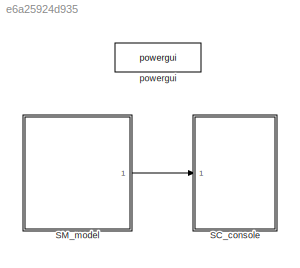
MODEL slx_e6a25924d935
KIND model
CONFIG AbsTol = auto
CONFIG EnableMultiTasking = on
CONFIG FixedStep = 5e-5
CONFIG MaxStep = auto
CONFIG MinStep = auto
CONFIG RelTol = 1e-3
CONFIG SampleTimeConstraint = Unconstrained
CONFIG Solver = ode4
CONFIG SolverName = ode4
CONFIG StartTime = 0.0
CONFIG StopTime = 2
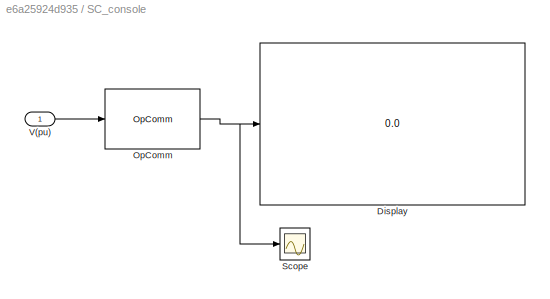
BLOCK [SubSystem] SC_console
  Ports = [1]
  RequestExecContextInheritance = off
BLOCK [Display] SC_console/Display
  Decimation = 1
  Ports = [1]
BLOCK [Reference] SC_console/OpComm  REF=rtlab/OpComm
  Ports = [1, 1]
  SourceBlock = rtlab/OpComm
  SourceType = RT-LAB OpComm
BLOCK [Scope] SC_console/Scope
  Floating = off
  NumInputPorts = 1
  Ports = [1]
  ScopeSpecificationString = Simulink.scopes.TimeScopeBlockCfg('CurrentConfiguration', extmgr.ConfigurationSet(extmgr.Configuration('Core','General UI',true,'FigureColor',[1 1 1]),extmgr.Configuration('Core','Source UI',true),extmgr.Configuration('Sources','WiredSimulink',true),extmgr.Configuration('Visuals','Time Domain',true,'SerializedDisplays',{struct('MinYLimReal','0.9','MaxYLimReal','1.1','YLabelReal','','MinYLimMag','0...<+1648ch>
BLOCK [Inport] SC_console/V(pu) 
  IconDisplay = Port number
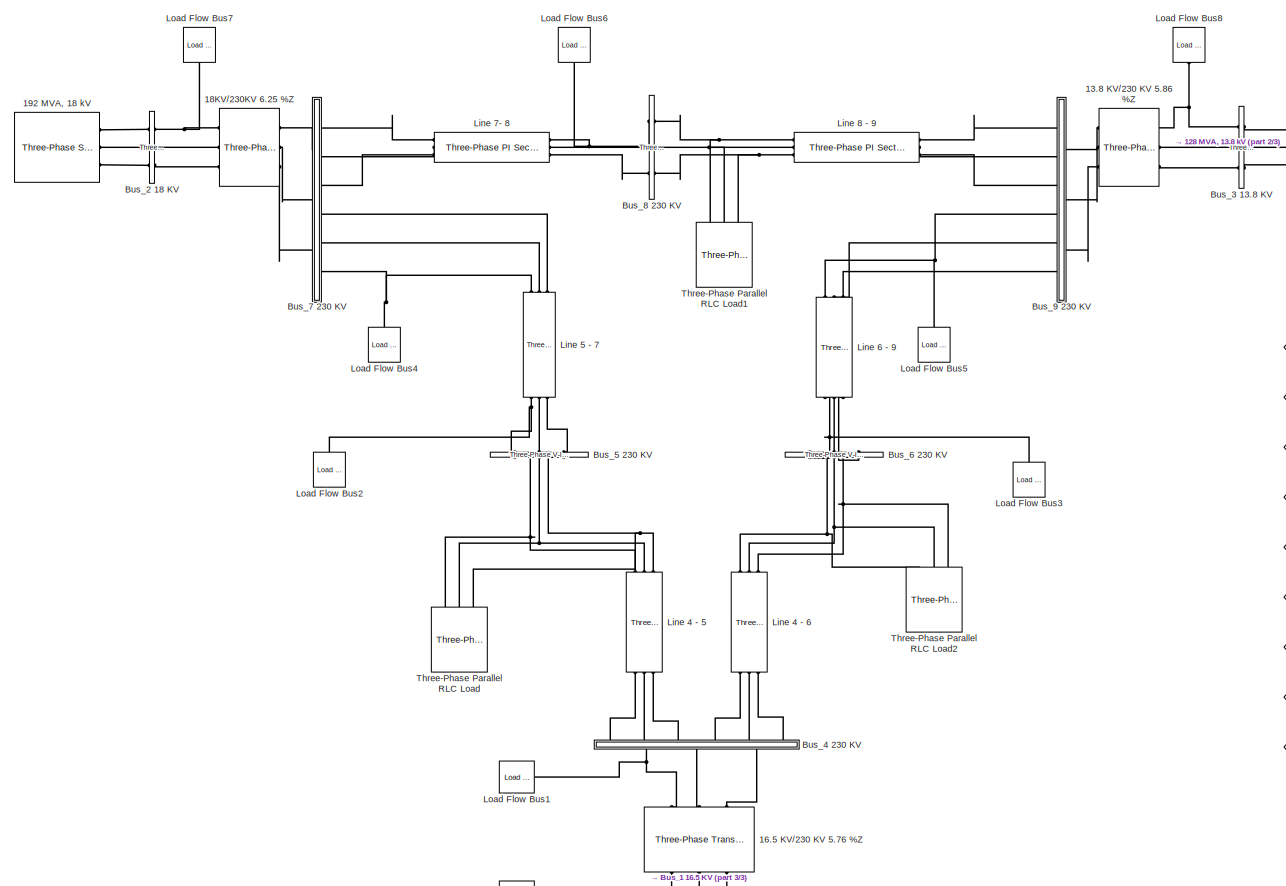
[diagram: SM_model - part 1/3, center side, full height]
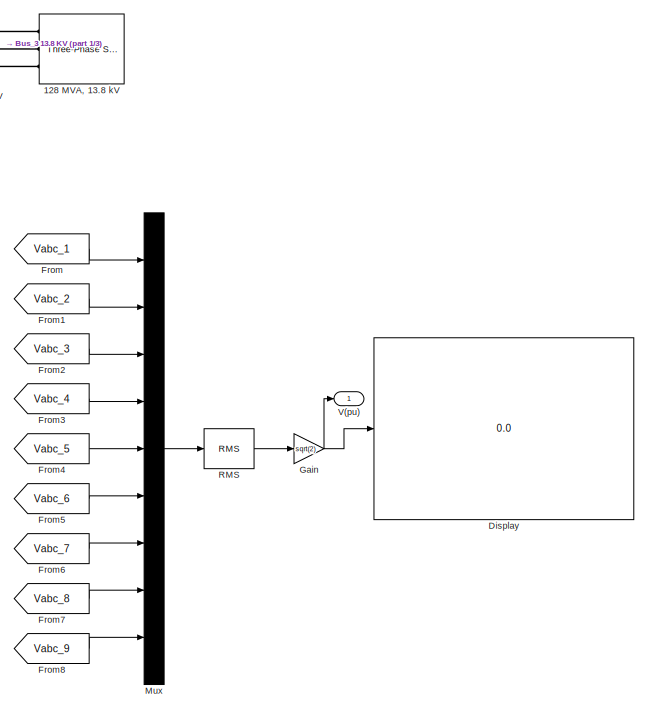
[diagram: SM_model - part 2/3, middle right region]
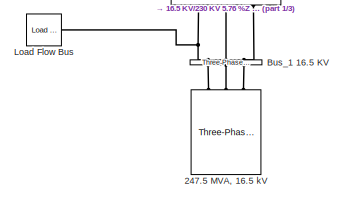
[diagram: SM_model - part 3/3, bottom center region]
BLOCK [SubSystem] SM_model
  Ports = [0, 1]
  RequestExecContextInheritance = off
BLOCK [Reference] SM_model/ Line 4 - 6  REF=powerlib/Elements/Three-Phase
PI Section Line
  AttributesFormatString = \n
  Ports = [0, 0, 0, 0, 0, 3, 3]
  SourceBlock = powerlib/Elements/Three-Phase\nPI Section Line
  SourceProductBaseCode = PS
  SourceProductName = Simscape Electrical
  SourceType = Three-Phase PI Section Line
BLOCK [Reference] SM_model/ Line 6 - 9  REF=powerlib/Elements/Three-Phase
PI Section Line
  AttributesFormatString = \n
  Ports = [0, 0, 0, 0, 0, 3, 3]
  SourceBlock = powerlib/Elements/Three-Phase\nPI Section Line
  SourceProductBaseCode = PS
  SourceProductName = Simscape Electrical
  SourceType = Three-Phase PI Section Line
BLOCK [Reference] SM_model/128 MVA, 13.8 kV  REF=powerlib/Electrical
Sources/Three-Phase Source
  Ports = [0, 0, 0, 0, 0, 0, 3]
  SourceBlock = powerlib/Electrical\nSources/Three-Phase Source
  SourceProductBaseCode = PS
  SourceProductName = Simscape Electrical
  SourceType = Three-Phase Source
BLOCK [Reference] SM_model/13.8 KV//230 KV 5.86 %Z  REF=powerlib/Elements/Three-Phase
Transformer
(Two Windings)
  Ports = [0, 0, 0, 0, 0, 3, 3]
  SourceBlock = powerlib/Elements/Three-Phase\nTransformer\n(Two Windings)
  SourceProductBaseCode = PS
  SourceProductName = Simscape Electrical
  SourceType = Three-Phase Transformer (Two Windings)
BLOCK [Reference] SM_model/16.5 KV//230 KV 5.76 %Z       REF=powerlib/Elements/Three-Phase
Transformer
(Two Windings)
  Ports = [0, 0, 0, 0, 0, 3, 3]
  SourceBlock = powerlib/Elements/Three-Phase\nTransformer\n(Two Windings)
  SourceProductBaseCode = PS
  SourceProductName = Simscape Electrical
  SourceType = Three-Phase Transformer (Two Windings)
BLOCK [Reference] SM_model/18KV//230KV 6.25 %Z  REF=powerlib/Elements/Three-Phase
Transformer
(Two Windings)
  Ports = [0, 0, 0, 0, 0, 3, 3]
  SourceBlock = powerlib/Elements/Three-Phase\nTransformer\n(Two Windings)
  SourceProductBaseCode = PS
  SourceProductName = Simscape Electrical
  SourceType = Three-Phase Transformer (Two Windings)
BLOCK [Reference] SM_model/192 MVA, 18 kV  REF=powerlib/Electrical
Sources/Three-Phase Source
  Ports = [0, 0, 0, 0, 0, 0, 3]
  SourceBlock = powerlib/Electrical\nSources/Three-Phase Source
  SourceProductBaseCode = PS
  SourceProductName = Simscape Electrical
  SourceType = Three-Phase Source
BLOCK [Reference] SM_model/247.5 MVA, 16.5 kV  REF=powerlib/Electrical
Sources/Three-Phase Source
  Ports = [0, 0, 0, 0, 0, 0, 3]
  SourceBlock = powerlib/Electrical\nSources/Three-Phase Source
  SourceProductBaseCode = PS
  SourceProductName = Simscape Electrical
  SourceType = Three-Phase Source
BLOCK [Reference] SM_model/Bus_1 16.5 KV  REF=powerlib/Measurements/Three-Phase
V-I Measurement
  Ports = [0, 0, 0, 0, 0, 3, 3]
  SourceBlock = powerlib/Measurements/Three-Phase\nV-I Measurement
  SourceProductBaseCode = PS
  SourceProductName = Simscape Electrical
  SourceType = Three-Phase VI Measurement
BLOCK [Reference] SM_model/Bus_2 18 KV  REF=powerlib/Measurements/Three-Phase
V-I Measurement
  Ports = [0, 0, 0, 0, 0, 3, 3]
  SourceBlock = powerlib/Measurements/Three-Phase\nV-I Measurement
  SourceProductBaseCode = PS
  SourceProductName = Simscape Electrical
  SourceType = Three-Phase VI Measurement
BLOCK [Reference] SM_model/Bus_3 13.8 KV  REF=powerlib/Measurements/Three-Phase
V-I Measurement
  Ports = [0, 0, 0, 0, 0, 3, 3]
  SourceBlock = powerlib/Measurements/Three-Phase\nV-I Measurement
  SourceProductBaseCode = PS
  SourceProductName = Simscape Electrical
  SourceType = Three-Phase VI Measurement
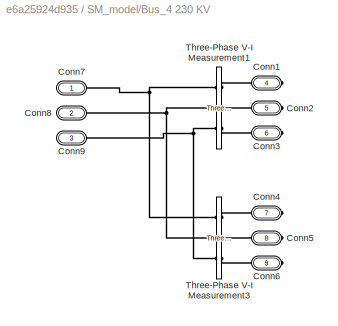
BLOCK [SubSystem] SM_model/Bus_4 230 KV
  Ports = [0, 0, 0, 0, 0, 3, 6]
  RequestExecContextInheritance = off
BLOCK [PMIOPort] SM_model/Bus_4 230 KV/Conn1
  Port = 4
  Side = Right
BLOCK [PMIOPort] SM_model/Bus_4 230 KV/Conn2
  Port = 5
  Side = Right
BLOCK [PMIOPort] SM_model/Bus_4 230 KV/Conn3
  Port = 6
  Side = Right
BLOCK [PMIOPort] SM_model/Bus_4 230 KV/Conn4
  Port = 7
  Side = Right
BLOCK [PMIOPort] SM_model/Bus_4 230 KV/Conn5
  Port = 8
  Side = Right
BLOCK [PMIOPort] SM_model/Bus_4 230 KV/Conn6
  Port = 9
  Side = Right
BLOCK [PMIOPort] SM_model/Bus_4 230 KV/Conn7
  Side = Left
BLOCK [PMIOPort] SM_model/Bus_4 230 KV/Conn8
  Port = 2
  Side = Left
BLOCK [PMIOPort] SM_model/Bus_4 230 KV/Conn9
  Port = 3
  Side = Left
BLOCK [Reference] SM_model/Bus_4 230 KV/Three-Phase V-I Measurement1  REF=powerlib/Measurements/Three-Phase
V-I Measurement
  Ports = [0, 0, 0, 0, 0, 3, 3]
  SourceBlock = powerlib/Measurements/Three-Phase\nV-I Measurement
  SourceProductBaseCode = PS
  SourceProductName = Simscape Electrical
  SourceType = Three-Phase VI Measurement
BLOCK [Reference] SM_model/Bus_4 230 KV/Three-Phase V-I Measurement3  REF=powerlib/Measurements/Three-Phase
V-I Measurement
  Ports = [0, 0, 0, 0, 0, 3, 3]
  SourceBlock = powerlib/Measurements/Three-Phase\nV-I Measurement
  SourceProductBaseCode = PS
  SourceProductName = Simscape Electrical
  SourceType = Three-Phase VI Measurement
BLOCK [Reference] SM_model/Bus_5 230 KV  REF=powerlib/Measurements/Three-Phase
V-I Measurement
  Ports = [0, 0, 0, 0, 0, 3, 3]
  SourceBlock = powerlib/Measurements/Three-Phase\nV-I Measurement
  SourceProductBaseCode = PS
  SourceProductName = Simscape Electrical
  SourceType = Three-Phase VI Measurement
BLOCK [Reference] SM_model/Bus_6 230 KV  REF=powerlib/Measurements/Three-Phase
V-I Measurement
  Ports = [0, 0, 0, 0, 0, 3, 3]
  SourceBlock = powerlib/Measurements/Three-Phase\nV-I Measurement
  SourceProductBaseCode = PS
  SourceProductName = Simscape Electrical
  SourceType = Three-Phase VI Measurement
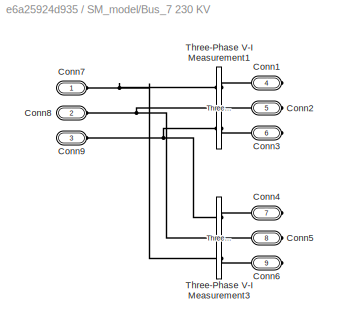
BLOCK [SubSystem] SM_model/Bus_7 230 KV
  Ports = [0, 0, 0, 0, 0, 3, 6]
  RequestExecContextInheritance = off
BLOCK [PMIOPort] SM_model/Bus_7 230 KV/Conn1
  Port = 4
  Side = Right
BLOCK [PMIOPort] SM_model/Bus_7 230 KV/Conn2
  Port = 5
  Side = Right
BLOCK [PMIOPort] SM_model/Bus_7 230 KV/Conn3
  Port = 6
  Side = Right
BLOCK [PMIOPort] SM_model/Bus_7 230 KV/Conn4
  Port = 7
  Side = Right
BLOCK [PMIOPort] SM_model/Bus_7 230 KV/Conn5
  Port = 8
  Side = Right
BLOCK [PMIOPort] SM_model/Bus_7 230 KV/Conn6
  Port = 9
  Side = Right
BLOCK [PMIOPort] SM_model/Bus_7 230 KV/Conn7
  Side = Left
BLOCK [PMIOPort] SM_model/Bus_7 230 KV/Conn8
  Port = 2
  Side = Left
BLOCK [PMIOPort] SM_model/Bus_7 230 KV/Conn9
  Port = 3
  Side = Left
BLOCK [Reference] SM_model/Bus_7 230 KV/Three-Phase V-I Measurement1  REF=powerlib/Measurements/Three-Phase
V-I Measurement
  Ports = [0, 0, 0, 0, 0, 3, 3]
  SourceBlock = powerlib/Measurements/Three-Phase\nV-I Measurement
  SourceProductBaseCode = PS
  SourceProductName = Simscape Electrical
  SourceType = Three-Phase VI Measurement
BLOCK [Reference] SM_model/Bus_7 230 KV/Three-Phase V-I Measurement3  REF=powerlib/Measurements/Three-Phase
V-I Measurement
  Ports = [0, 0, 0, 0, 0, 3, 3]
  SourceBlock = powerlib/Measurements/Three-Phase\nV-I Measurement
  SourceProductBaseCode = PS
  SourceProductName = Simscape Electrical
  SourceType = Three-Phase VI Measurement
BLOCK [Reference] SM_model/Bus_8 230 KV  REF=powerlib/Measurements/Three-Phase
V-I Measurement
  Ports = [0, 0, 0, 0, 0, 3, 3]
  SourceBlock = powerlib/Measurements/Three-Phase\nV-I Measurement
  SourceProductBaseCode = PS
  SourceProductName = Simscape Electrical
  SourceType = Three-Phase VI Measurement
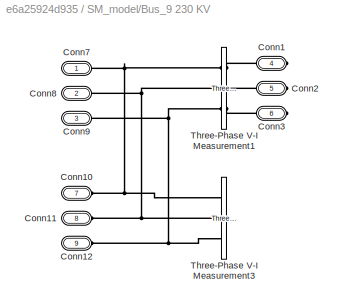
BLOCK [SubSystem] SM_model/Bus_9 230 KV
  Ports = [0, 0, 0, 0, 0, 6, 3]
  RequestExecContextInheritance = off
BLOCK [PMIOPort] SM_model/Bus_9 230 KV/Conn1
  Port = 4
  Side = Right
BLOCK [PMIOPort] SM_model/Bus_9 230 KV/Conn10
  Port = 7
  Side = Left
BLOCK [PMIOPort] SM_model/Bus_9 230 KV/Conn11
  Port = 8
  Side = Left
BLOCK [PMIOPort] SM_model/Bus_9 230 KV/Conn12
  Port = 9
  Side = Left
BLOCK [PMIOPort] SM_model/Bus_9 230 KV/Conn2
  Port = 5
  Side = Right
BLOCK [PMIOPort] SM_model/Bus_9 230 KV/Conn3
  Port = 6
  Side = Right
BLOCK [PMIOPort] SM_model/Bus_9 230 KV/Conn7
  Side = Left
BLOCK [PMIOPort] SM_model/Bus_9 230 KV/Conn8
  Port = 2
  Side = Left
BLOCK [PMIOPort] SM_model/Bus_9 230 KV/Conn9
  Port = 3
  Side = Left
BLOCK [Reference] SM_model/Bus_9 230 KV/Three-Phase V-I Measurement1  REF=powerlib/Measurements/Three-Phase
V-I Measurement
  Ports = [0, 0, 0, 0, 0, 3, 3]
  SourceBlock = powerlib/Measurements/Three-Phase\nV-I Measurement
  SourceProductBaseCode = PS
  SourceProductName = Simscape Electrical
  SourceType = Three-Phase VI Measurement
BLOCK [Reference] SM_model/Bus_9 230 KV/Three-Phase V-I Measurement3  REF=powerlib/Measurements/Three-Phase
V-I Measurement
  Ports = [0, 0, 0, 0, 0, 3, 3]
  SourceBlock = powerlib/Measurements/Three-Phase\nV-I Measurement
  SourceProductBaseCode = PS
  SourceProductName = Simscape Electrical
  SourceType = Three-Phase VI Measurement
BLOCK [Display] SM_model/Display
  Decimation = 1
  Ports = [1]
BLOCK [From] SM_model/From
  GotoTag = Vabc_1
  TagVisibility = global
BLOCK [From] SM_model/From1
  GotoTag = Vabc_2
  TagVisibility = global
BLOCK [From] SM_model/From2
  GotoTag = Vabc_3
  TagVisibility = global
BLOCK [From] SM_model/From3
  GotoTag = Vabc_4
  TagVisibility = global
BLOCK [From] SM_model/From4
  GotoTag = Vabc_5
  TagVisibility = global
BLOCK [From] SM_model/From5
  GotoTag = Vabc_6
  TagVisibility = global
BLOCK [From] SM_model/From6
  GotoTag = Vabc_7
  TagVisibility = global
BLOCK [From] SM_model/From7
  GotoTag = Vabc_8
  TagVisibility = global
BLOCK [From] SM_model/From8
  GotoTag = Vabc_9
  TagVisibility = global
BLOCK [Gain] SM_model/Gain
  Gain = sqrt(2)
  OutDataTypeStr = Inherit: Inherit via internal rule
  ParamDataTypeStr = Inherit: Inherit via internal rule
  SaturateOnIntegerOverflow = off
BLOCK [Reference] SM_model/Line 4 - 5   REF=powerlib/Elements/Three-Phase
PI Section Line
  AttributesFormatString = \n
  Ports = [0, 0, 0, 0, 0, 3, 3]
  SourceBlock = powerlib/Elements/Three-Phase\nPI Section Line
  SourceProductBaseCode = PS
  SourceProductName = Simscape Electrical
  SourceType = Three-Phase PI Section Line
BLOCK [Reference] SM_model/Line 5 - 7   REF=powerlib/Elements/Three-Phase
PI Section Line
  AttributesFormatString = \n
  Ports = [0, 0, 0, 0, 0, 3, 3]
  SourceBlock = powerlib/Elements/Three-Phase\nPI Section Line
  SourceProductBaseCode = PS
  SourceProductName = Simscape Electrical
  SourceType = Three-Phase PI Section Line
BLOCK [Reference] SM_model/Line 7- 8  REF=powerlib/Elements/Three-Phase
PI Section Line
  AttributesFormatString = \n
  Ports = [0, 0, 0, 0, 0, 3, 3]
  SourceBlock = powerlib/Elements/Three-Phase\nPI Section Line
  SourceProductBaseCode = PS
  SourceProductName = Simscape Electrical
  SourceType = Three-Phase PI Section Line
BLOCK [Reference] SM_model/Line 8 - 9  REF=powerlib/Elements/Three-Phase
PI Section Line
  AttributesFormatString = \n
  Ports = [0, 0, 0, 0, 0, 3, 3]
  SourceBlock = powerlib/Elements/Three-Phase\nPI Section Line
  SourceProductBaseCode = PS
  SourceProductName = Simscape Electrical
  SourceType = Three-Phase PI Section Line
BLOCK [Reference] SM_model/Load Flow Bus  REF=powerlib/Measurements/Load Flow Bus
  AttributesFormatString = %<ID>\n%<Vbase>V\n%<VLF>pu\n%<angleLF>deg.
  Ports = [0, 0, 0, 0, 0, 1]
  SourceBlock = powerlib/Measurements/Load Flow Bus
  SourceProductBaseCode = PS
  SourceProductName = Simscape Electrical
  SourceType = Load Flow Bus
BLOCK [Reference] SM_model/Load Flow Bus1  REF=powerlib/Measurements/Load Flow Bus
  AttributesFormatString = %<ID>\n%<Vbase>V\n%<VLF>pu\n%<angleLF>deg.
  Ports = [0, 0, 0, 0, 0, 1]
  SourceBlock = powerlib/Measurements/Load Flow Bus
  SourceProductBaseCode = PS
  SourceProductName = Simscape Electrical
  SourceType = Load Flow Bus
BLOCK [Reference] SM_model/Load Flow Bus2  REF=powerlib/Measurements/Load Flow Bus
  AttributesFormatString = %<ID>\n%<Vbase>V\n%<VLF>pu\n%<angleLF>deg.
  Ports = [0, 0, 0, 0, 0, 1]
  SourceBlock = powerlib/Measurements/Load Flow Bus
  SourceProductBaseCode = PS
  SourceProductName = Simscape Electrical
  SourceType = Load Flow Bus
BLOCK [Reference] SM_model/Load Flow Bus3  REF=powerlib/Measurements/Load Flow Bus
  AttributesFormatString = %<ID>\n%<Vbase>V\n%<VLF>pu\n%<angleLF>deg.
  Ports = [0, 0, 0, 0, 0, 1]
  SourceBlock = powerlib/Measurements/Load Flow Bus
  SourceProductBaseCode = PS
  SourceProductName = Simscape Electrical
  SourceType = Load Flow Bus
BLOCK [Reference] SM_model/Load Flow Bus4  REF=powerlib/Measurements/Load Flow Bus
  AttributesFormatString = %<ID>\n%<Vbase>V\n%<VLF>pu\n%<angleLF>deg.
  Ports = [0, 0, 0, 0, 0, 1]
  SourceBlock = powerlib/Measurements/Load Flow Bus
  SourceProductBaseCode = PS
  SourceProductName = Simscape Electrical
  SourceType = Load Flow Bus
BLOCK [Reference] SM_model/Load Flow Bus5  REF=powerlib/Measurements/Load Flow Bus
  AttributesFormatString = %<ID>\n%<Vbase>V\n%<VLF>pu\n%<angleLF>deg.
  Ports = [0, 0, 0, 0, 0, 1]
  SourceBlock = powerlib/Measurements/Load Flow Bus
  SourceProductBaseCode = PS
  SourceProductName = Simscape Electrical
  SourceType = Load Flow Bus
BLOCK [Reference] SM_model/Load Flow Bus6  REF=powerlib/Measurements/Load Flow Bus
  AttributesFormatString = %<ID>\n%<Vbase>V\n%<VLF>pu\n%<angleLF>deg.
  Ports = [0, 0, 0, 0, 0, 1]
  SourceBlock = powerlib/Measurements/Load Flow Bus
  SourceProductBaseCode = PS
  SourceProductName = Simscape Electrical
  SourceType = Load Flow Bus
BLOCK [Reference] SM_model/Load Flow Bus7  REF=powerlib/Measurements/Load Flow Bus
  AttributesFormatString = %<ID>\n%<Vbase>V\n%<VLF>pu\n%<angleLF>deg.
  Ports = [0, 0, 0, 0, 0, 1]
  SourceBlock = powerlib/Measurements/Load Flow Bus
  SourceProductBaseCode = PS
  SourceProductName = Simscape Electrical
  SourceType = Load Flow Bus
BLOCK [Reference] SM_model/Load Flow Bus8  REF=powerlib/Measurements/Load Flow Bus
  AttributesFormatString = %<ID>\n%<Vbase>V\n%<VLF>pu\n%<angleLF>deg.
  Ports = [0, 0, 0, 0, 0, 1]
  SourceBlock = powerlib/Measurements/Load Flow Bus
  SourceProductBaseCode = PS
  SourceProductName = Simscape Electrical
  SourceType = Load Flow Bus
BLOCK [Mux] SM_model/Mux
  DisplayOption = bar
  Inputs = 9
  Ports = [9, 1]
BLOCK [Reference] SM_model/RMS  REF=powerlib_meascontrol/Measurements/RMS
  Ports = [1, 1]
  SourceBlock = powerlib_meascontrol/Measurements/RMS
  SourceProductBaseCode = PS
  SourceProductName = Simscape Electrical
  SourceType = RMS
BLOCK [Reference] SM_model/Three-Phase Parallel RLC Load  REF=powerlib/Elements/Three-Phase
Parallel RLC Load
  AttributesFormatString = \n
  Ports = [0, 0, 0, 0, 0, 3]
  SourceBlock = powerlib/Elements/Three-Phase\nParallel RLC Load
  SourceProductBaseCode = PS
  SourceProductName = Simscape Electrical
  SourceType = Three-Phase Parallel RLC Load
BLOCK [Reference] SM_model/Three-Phase Parallel RLC Load1  REF=powerlib/Elements/Three-Phase
Parallel RLC Load
  AttributesFormatString = \n
  Ports = [0, 0, 0, 0, 0, 3]
  SourceBlock = powerlib/Elements/Three-Phase\nParallel RLC Load
  SourceProductBaseCode = PS
  SourceProductName = Simscape Electrical
  SourceType = Three-Phase Parallel RLC Load
BLOCK [Reference] SM_model/Three-Phase Parallel RLC Load2  REF=powerlib/Elements/Three-Phase
Parallel RLC Load
  AttributesFormatString = \n
  Ports = [0, 0, 0, 0, 0, 3]
  SourceBlock = powerlib/Elements/Three-Phase\nParallel RLC Load
  SourceProductBaseCode = PS
  SourceProductName = Simscape Electrical
  SourceType = Three-Phase Parallel RLC Load
BLOCK [Outport] SM_model/V(pu)
  IconDisplay = Port number
BLOCK [Reference] powergui  REF=powerlib/powergui
  Ports = []
  Priority = 1
  SourceBlock = powerlib/powergui
  SourceProductBaseCode = PS
  SourceProductName = Simscape Electrical
  SourceType = PSB option menu block
NET SC_console/OpComm:1 -> SC_console/Display:1, SC_console/Scope:1
LINE SC_console/V(pu) :1 -> SC_console/OpComm:1
LINE SM_model/From1:1 -> SM_model/Mux:2
LINE SM_model/From2:1 -> SM_model/Mux:3
LINE SM_model/From3:1 -> SM_model/Mux:4
LINE SM_model/From4:1 -> SM_model/Mux:5
LINE SM_model/From5:1 -> SM_model/Mux:6
LINE SM_model/From6:1 -> SM_model/Mux:7
LINE SM_model/From7:1 -> SM_model/Mux:8
LINE SM_model/From8:1 -> SM_model/Mux:9
LINE SM_model/From:1 -> SM_model/Mux:1
NET SM_model/Gain:1 -> SM_model/Display:1, SM_model/V(pu):1
LINE SM_model/Mux:1 -> SM_model/RMS:1
LINE SM_model/RMS:1 -> SM_model/Gain:1
LINE SM_model:1 -> SC_console:1
PNET net1: SM_model/ Line 4 - 6:LConn1 -- SM_model/Bus_6 230 KV:RConn1 -- SM_model/Three-Phase Parallel RLC Load2:LConn1
PNET net2: SM_model/ Line 4 - 6:LConn2 -- SM_model/Bus_6 230 KV:RConn2 -- SM_model/Three-Phase Parallel RLC Load2:LConn2
PNET net3: SM_model/ Line 4 - 6:LConn3 -- SM_model/Bus_6 230 KV:RConn3 -- SM_model/Three-Phase Parallel RLC Load2:LConn3
PLINE SM_model/ Line 4 - 6:RConn1 -- SM_model/Bus_4 230 KV:RConn4
PLINE SM_model/ Line 4 - 6:RConn2 -- SM_model/Bus_4 230 KV:RConn5
PLINE SM_model/ Line 4 - 6:RConn3 -- SM_model/Bus_4 230 KV:RConn6
PNET net4: SM_model/ Line 6 - 9:LConn1 -- SM_model/Bus_6 230 KV:LConn1 -- SM_model/Load Flow Bus3:LConn1
PLINE SM_model/ Line 6 - 9:LConn2 -- SM_model/Bus_6 230 KV:LConn2
PLINE SM_model/ Line 6 - 9:LConn3 -- SM_model/Bus_6 230 KV:LConn3
PNET net5: SM_model/ Line 6 - 9:RConn1 -- SM_model/Bus_9 230 KV:LConn4 -- SM_model/Load Flow Bus5:LConn1
PLINE SM_model/ Line 6 - 9:RConn2 -- SM_model/Bus_9 230 KV:LConn5
PLINE SM_model/ Line 6 - 9:RConn3 -- SM_model/Bus_9 230 KV:LConn6
PLINE SM_model/128 MVA, 13.8 kV:RConn1 -- SM_model/Bus_3 13.8 KV:RConn1
PLINE SM_model/128 MVA, 13.8 kV:RConn2 -- SM_model/Bus_3 13.8 KV:RConn2
PLINE SM_model/128 MVA, 13.8 kV:RConn3 -- SM_model/Bus_3 13.8 KV:RConn3
PNET net6: SM_model/13.8 KV//230 KV 5.86 %Z:LConn1 -- SM_model/Bus_3 13.8 KV:LConn1 -- SM_model/Load Flow Bus8:LConn1
PLINE SM_model/13.8 KV//230 KV 5.86 %Z:LConn2 -- SM_model/Bus_3 13.8 KV:LConn2
PLINE SM_model/13.8 KV//230 KV 5.86 %Z:LConn3 -- SM_model/Bus_3 13.8 KV:LConn3
PLINE SM_model/13.8 KV//230 KV 5.86 %Z:RConn1 -- SM_model/Bus_9 230 KV:RConn1
PLINE SM_model/13.8 KV//230 KV 5.86 %Z:RConn2 -- SM_model/Bus_9 230 KV:RConn2
PLINE SM_model/13.8 KV//230 KV 5.86 %Z:RConn3 -- SM_model/Bus_9 230 KV:RConn3
PNET net7: SM_model/16.5 KV//230 KV 5.76 %Z     :LConn1 -- SM_model/Bus_1 16.5 KV:LConn1 -- SM_model/Load Flow Bus:LConn1
PLINE SM_model/16.5 KV//230 KV 5.76 %Z     :LConn2 -- SM_model/Bus_1 16.5 KV:LConn2
PLINE SM_model/16.5 KV//230 KV 5.76 %Z     :LConn3 -- SM_model/Bus_1 16.5 KV:LConn3
PNET net8: SM_model/16.5 KV//230 KV 5.76 %Z     :RConn1 -- SM_model/Bus_4 230 KV:LConn1 -- SM_model/Load Flow Bus1:LConn1
PLINE SM_model/16.5 KV//230 KV 5.76 %Z     :RConn2 -- SM_model/Bus_4 230 KV:LConn2
PLINE SM_model/16.5 KV//230 KV 5.76 %Z     :RConn3 -- SM_model/Bus_4 230 KV:LConn3
PNET net9: SM_model/18KV//230KV 6.25 %Z:LConn1 -- SM_model/Bus_2 18 KV:RConn1 -- SM_model/Load Flow Bus7:LConn1
PLINE SM_model/18KV//230KV 6.25 %Z:LConn2 -- SM_model/Bus_2 18 KV:RConn2
PLINE SM_model/18KV//230KV 6.25 %Z:LConn3 -- SM_model/Bus_2 18 KV:RConn3
PLINE SM_model/18KV//230KV 6.25 %Z:RConn1 -- SM_model/Bus_7 230 KV:LConn1
PLINE SM_model/18KV//230KV 6.25 %Z:RConn2 -- SM_model/Bus_7 230 KV:LConn2
PLINE SM_model/18KV//230KV 6.25 %Z:RConn3 -- SM_model/Bus_7 230 KV:LConn3
PLINE SM_model/192 MVA, 18 kV:RConn1 -- SM_model/Bus_2 18 KV:LConn1
PLINE SM_model/192 MVA, 18 kV:RConn2 -- SM_model/Bus_2 18 KV:LConn2
PLINE SM_model/192 MVA, 18 kV:RConn3 -- SM_model/Bus_2 18 KV:LConn3
PLINE SM_model/247.5 MVA, 16.5 kV:RConn1 -- SM_model/Bus_1 16.5 KV:RConn1
PLINE SM_model/247.5 MVA, 16.5 kV:RConn2 -- SM_model/Bus_1 16.5 KV:RConn2
PLINE SM_model/247.5 MVA, 16.5 kV:RConn3 -- SM_model/Bus_1 16.5 KV:RConn3
PLINE SM_model/Bus_4 230 KV/Conn1:RConn1 -- SM_model/Bus_4 230 KV/Three-Phase V-I Measurement1:RConn1
PLINE SM_model/Bus_4 230 KV/Conn2:RConn1 -- SM_model/Bus_4 230 KV/Three-Phase V-I Measurement1:RConn2
PLINE SM_model/Bus_4 230 KV/Conn3:RConn1 -- SM_model/Bus_4 230 KV/Three-Phase V-I Measurement1:RConn3
PLINE SM_model/Bus_4 230 KV/Conn4:RConn1 -- SM_model/Bus_4 230 KV/Three-Phase V-I Measurement3:RConn1
PLINE SM_model/Bus_4 230 KV/Conn5:RConn1 -- SM_model/Bus_4 230 KV/Three-Phase V-I Measurement3:RConn2
PLINE SM_model/Bus_4 230 KV/Conn6:RConn1 -- SM_model/Bus_4 230 KV/Three-Phase V-I Measurement3:RConn3
PNET net10: SM_model/Bus_4 230 KV/Conn7:RConn1 -- SM_model/Bus_4 230 KV/Three-Phase V-I Measurement1:LConn1 -- SM_model/Bus_4 230 KV/Three-Phase V-I Measurement3:LConn1
PNET net11: SM_model/Bus_4 230 KV/Conn8:RConn1 -- SM_model/Bus_4 230 KV/Three-Phase V-I Measurement1:LConn2 -- SM_model/Bus_4 230 KV/Three-Phase V-I Measurement3:LConn2
PNET net12: SM_model/Bus_4 230 KV/Conn9:RConn1 -- SM_model/Bus_4 230 KV/Three-Phase V-I Measurement1:LConn3 -- SM_model/Bus_4 230 KV/Three-Phase V-I Measurement3:LConn3
PLINE SM_model/Bus_4 230 KV:RConn1 -- SM_model/Line 4 - 5 :RConn1
PLINE SM_model/Bus_4 230 KV:RConn2 -- SM_model/Line 4 - 5 :RConn2
PLINE SM_model/Bus_4 230 KV:RConn3 -- SM_model/Line 4 - 5 :RConn3
PNET net13: SM_model/Bus_5 230 KV:LConn1 -- SM_model/Line 5 - 7 :RConn1 -- SM_model/Load Flow Bus2:LConn1
PLINE SM_model/Bus_5 230 KV:LConn2 -- SM_model/Line 5 - 7 :RConn2
PLINE SM_model/Bus_5 230 KV:LConn3 -- SM_model/Line 5 - 7 :RConn3
PNET net14: SM_model/Bus_5 230 KV:RConn1 -- SM_model/Line 4 - 5 :LConn1 -- SM_model/Three-Phase Parallel RLC Load:LConn1
PNET net15: SM_model/Bus_5 230 KV:RConn2 -- SM_model/Line 4 - 5 :LConn2 -- SM_model/Three-Phase Parallel RLC Load:LConn2
PNET net16: SM_model/Bus_5 230 KV:RConn3 -- SM_model/Line 4 - 5 :LConn3 -- SM_model/Three-Phase Parallel RLC Load:LConn3
PLINE SM_model/Bus_7 230 KV/Conn1:RConn1 -- SM_model/Bus_7 230 KV/Three-Phase V-I Measurement1:RConn1
PLINE SM_model/Bus_7 230 KV/Conn2:RConn1 -- SM_model/Bus_7 230 KV/Three-Phase V-I Measurement1:RConn2
PLINE SM_model/Bus_7 230 KV/Conn3:RConn1 -- SM_model/Bus_7 230 KV/Three-Phase V-I Measurement1:RConn3
PLINE SM_model/Bus_7 230 KV/Conn4:RConn1 -- SM_model/Bus_7 230 KV/Three-Phase V-I Measurement3:RConn1
PLINE SM_model/Bus_7 230 KV/Conn5:RConn1 -- SM_model/Bus_7 230 KV/Three-Phase V-I Measurement3:RConn2
PLINE SM_model/Bus_7 230 KV/Conn6:RConn1 -- SM_model/Bus_7 230 KV/Three-Phase V-I Measurement3:RConn3
PNET net17: SM_model/Bus_7 230 KV/Conn7:RConn1 -- SM_model/Bus_7 230 KV/Three-Phase V-I Measurement1:LConn1 -- SM_model/Bus_7 230 KV/Three-Phase V-I Measurement3:LConn3
PNET net18: SM_model/Bus_7 230 KV/Conn8:RConn1 -- SM_model/Bus_7 230 KV/Three-Phase V-I Measurement1:LConn2 -- SM_model/Bus_7 230 KV/Three-Phase V-I Measurement3:LConn2
PNET net19: SM_model/Bus_7 230 KV/Conn9:RConn1 -- SM_model/Bus_7 230 KV/Three-Phase V-I Measurement1:LConn3 -- SM_model/Bus_7 230 KV/Three-Phase V-I Measurement3:LConn1
PLINE SM_model/Bus_7 230 KV:RConn1 -- SM_model/Line 7- 8:LConn1
PLINE SM_model/Bus_7 230 KV:RConn2 -- SM_model/Line 7- 8:LConn2
PLINE SM_model/Bus_7 230 KV:RConn3 -- SM_model/Line 7- 8:LConn3
PLINE SM_model/Bus_7 230 KV:RConn4 -- SM_model/Line 5 - 7 :LConn3
PLINE SM_model/Bus_7 230 KV:RConn5 -- SM_model/Line 5 - 7 :LConn2
PNET net20: SM_model/Bus_7 230 KV:RConn6 -- SM_model/Line 5 - 7 :LConn1 -- SM_model/Load Flow Bus4:LConn1
PNET net21: SM_model/Bus_8 230 KV:LConn1 -- SM_model/Line 8 - 9:LConn1 -- SM_model/Three-Phase Parallel RLC Load1:LConn1
PNET net22: SM_model/Bus_8 230 KV:LConn2 -- SM_model/Line 8 - 9:LConn2 -- SM_model/Three-Phase Parallel RLC Load1:LConn2
PNET net23: SM_model/Bus_8 230 KV:LConn3 -- SM_model/Line 8 - 9:LConn3 -- SM_model/Three-Phase Parallel RLC Load1:LConn3
PNET net24: SM_model/Bus_8 230 KV:RConn1 -- SM_model/Line 7- 8:RConn1 -- SM_model/Load Flow Bus6:LConn1
PLINE SM_model/Bus_8 230 KV:RConn2 -- SM_model/Line 7- 8:RConn2
PLINE SM_model/Bus_8 230 KV:RConn3 -- SM_model/Line 7- 8:RConn3
PNET net25: SM_model/Bus_9 230 KV/Conn10:RConn1 -- SM_model/Bus_9 230 KV/Conn7:RConn1 -- SM_model/Bus_9 230 KV/Three-Phase V-I Measurement1:LConn1 -- SM_model/Bus_9 230 KV/Three-Phase V-I Measurement3:LConn1
PNET net26: SM_model/Bus_9 230 KV/Conn11:RConn1 -- SM_model/Bus_9 230 KV/Conn8:RConn1 -- SM_model/Bus_9 230 KV/Three-Phase V-I Measurement1:LConn2 -- SM_model/Bus_9 230 KV/Three-Phase V-I Measurement3:LConn2
PNET net27: SM_model/Bus_9 230 KV/Conn12:RConn1 -- SM_model/Bus_9 230 KV/Conn9:RConn1 -- SM_model/Bus_9 230 KV/Three-Phase V-I Measurement1:LConn3 -- SM_model/Bus_9 230 KV/Three-Phase V-I Measurement3:LConn3
PLINE SM_model/Bus_9 230 KV/Conn1:RConn1 -- SM_model/Bus_9 230 KV/Three-Phase V-I Measurement1:RConn1
PLINE SM_model/Bus_9 230 KV/Conn2:RConn1 -- SM_model/Bus_9 230 KV/Three-Phase V-I Measurement1:RConn2
PLINE SM_model/Bus_9 230 KV/Conn3:RConn1 -- SM_model/Bus_9 230 KV/Three-Phase V-I Measurement1:RConn3
PLINE SM_model/Bus_9 230 KV:LConn1 -- SM_model/Line 8 - 9:RConn1
PLINE SM_model/Bus_9 230 KV:LConn2 -- SM_model/Line 8 - 9:RConn2
PLINE SM_model/Bus_9 230 KV:LConn3 -- SM_model/Line 8 - 9:RConn3
note: NET lines group one-source signal fan-out (src -> all destinations, sorted); 1:1 wires keep LINE; PNET lines group multi-terminal physical nets as a canonical sorted terminal list (undirected conserving connections); 2-terminal nets keep the pairwise PLINE form
